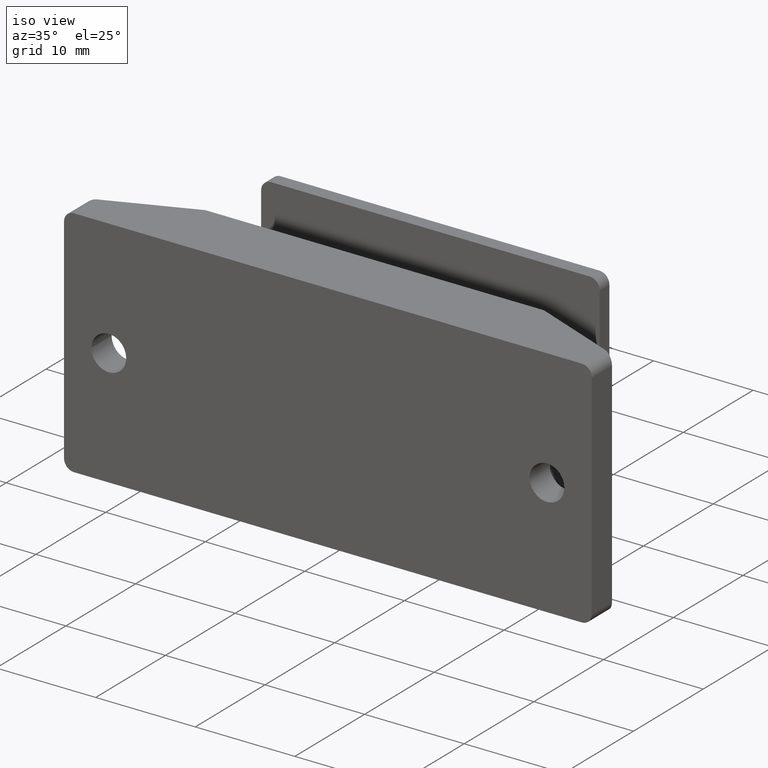
[diagram: clean part render]
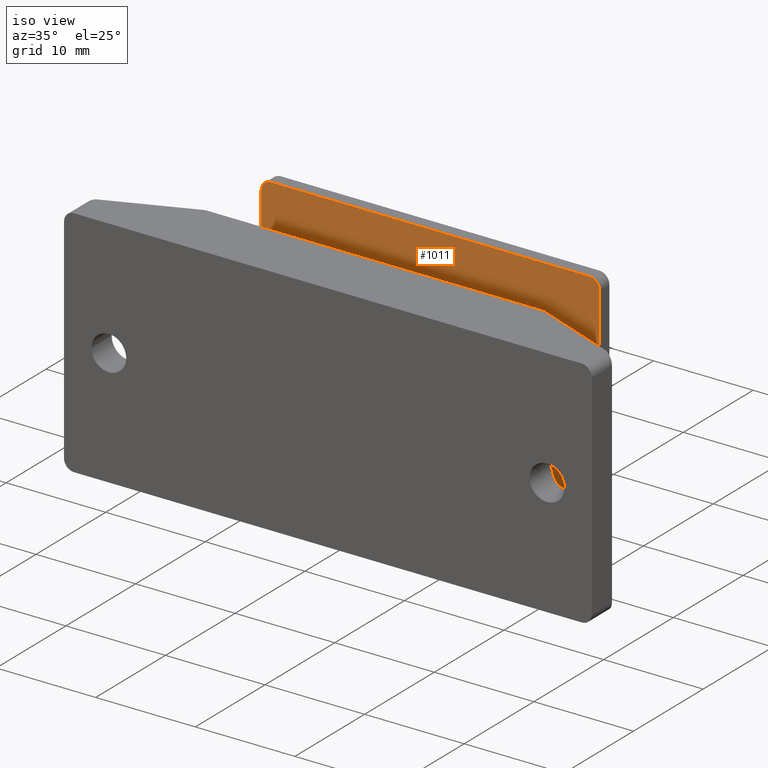
[diagram: same view with one face highlighted and labeled with its STEP entity id]
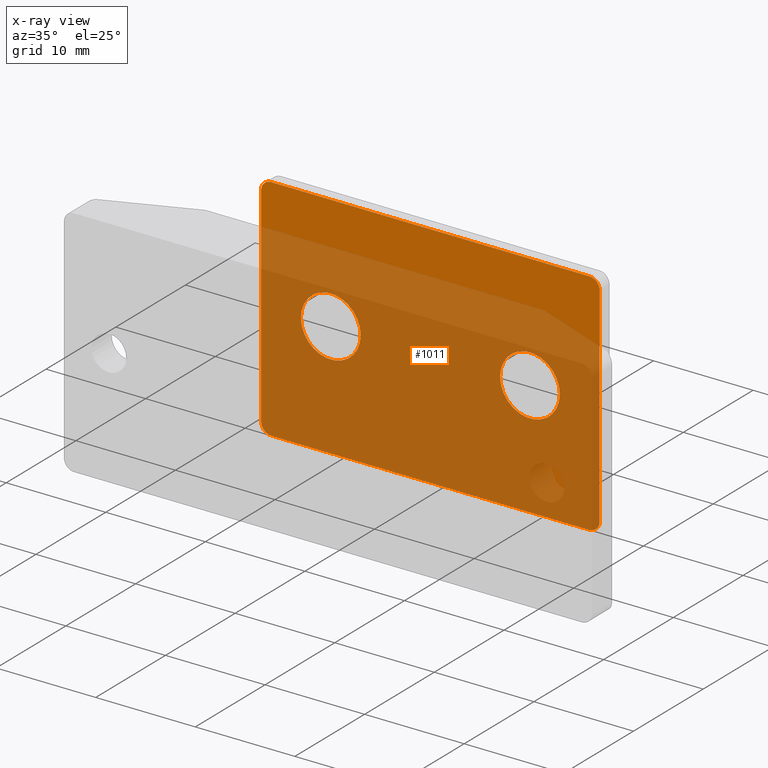
[diagram: x-ray of the same camera — body ghosted, the highlighted face saturated]
A machine part, iso view. The second image highlights one B-rep face of the part: STEP entity #1011.
The next image is the same camera in x-ray: the body ghosted, the highlighted face saturated — about 79% of this face is hidden behind the body in this view.
In plain terms, the highlighted planar face has unit normal (-0, -1, 0).
Its self-contained STEP definition (entity closure, byte-faithful):
#56=FACE_BOUND('',#218,.T.);
#57=FACE_BOUND('',#219,.T.);
#87=PLANE('',#1105);
#145=FACE_OUTER_BOUND('',#217,.T.);
#217=EDGE_LOOP('',(#894,#895,#896,#897,#898,#899,#900,#901));
#218=EDGE_LOOP('',(#902));
#219=EDGE_LOOP('',(#903));
#304=LINE('',#1593,#406);
#310=LINE('',#1618,#412);
#314=LINE('',#1641,#416);
#315=LINE('',#1643,#417);
#406=VECTOR('',#1297,32.);
#412=VECTOR('',#1321,32.);
#416=VECTOR('',#1351,21.);
#417=VECTOR('',#1354,21.);
#452=CIRCLE('',#1079,1.);
#459=CIRCLE('',#1089,1.);
#460=CIRCLE('',#1092,1.);
#461=CIRCLE('',#1094,1.);
#463=CIRCLE('',#1097,3.);
#465=CIRCLE('',#1101,3.);
#518=VERTEX_POINT('',#1580);
#519=VERTEX_POINT('',#1581);
#523=VERTEX_POINT('',#1591);
#531=VERTEX_POINT('',#1611);
#532=VERTEX_POINT('',#1612);
#533=VERTEX_POINT('',#1617);
#534=VERTEX_POINT('',#1621);
#535=VERTEX_POINT('',#1625);
#537=VERTEX_POINT('',#1631);
#539=VERTEX_POINT('',#1637);
#634=EDGE_CURVE('',#518,#519,#452,.T.);
#640=EDGE_CURVE('',#518,#523,#304,.T.);
#649=EDGE_CURVE('',#531,#532,#459,.T.);
#652=EDGE_CURVE('',#533,#532,#310,.T.);
#654=EDGE_CURVE('',#533,#534,#460,.T.);
#656=EDGE_CURVE('',#535,#523,#461,.T.);
#659=EDGE_CURVE('',#537,#537,#463,.T.);
#661=EDGE_CURVE('',#539,#539,#465,.T.);
#662=EDGE_CURVE('',#535,#534,#314,.T.);
#663=EDGE_CURVE('',#531,#519,#315,.T.);
#894=ORIENTED_EDGE('',*,*,#634,.F.);
#895=ORIENTED_EDGE('',*,*,#640,.T.);
#896=ORIENTED_EDGE('',*,*,#656,.F.);
#897=ORIENTED_EDGE('',*,*,#662,.T.);
#898=ORIENTED_EDGE('',*,*,#654,.F.);
#899=ORIENTED_EDGE('',*,*,#652,.T.);
#900=ORIENTED_EDGE('',*,*,#649,.F.);
#901=ORIENTED_EDGE('',*,*,#663,.T.);
#902=ORIENTED_EDGE('',*,*,#659,.T.);
#903=ORIENTED_EDGE('',*,*,#661,.T.);
#1011=ADVANCED_FACE('',(#145,#56,#57),#87,.T.);
#1079=AXIS2_PLACEMENT_3D('',#1582,#1287,#1288);
#1089=AXIS2_PLACEMENT_3D('',#1613,#1315,#1316);
#1092=AXIS2_PLACEMENT_3D('',#1622,#1325,#1326);
#1094=AXIS2_PLACEMENT_3D('',#1626,#1330,#1331);
#1097=AXIS2_PLACEMENT_3D('',#1632,#1337,#1338);
#1101=AXIS2_PLACEMENT_3D('',#1638,#1345,#1346);
#1105=AXIS2_PLACEMENT_3D('',#1644,#1355,#1356);
#1287=DIRECTION('center_axis',(0.,0.,-1.));
#1288=DIRECTION('ref_axis',(0.707106781186548,0.707106781186548,0.));
#1297=DIRECTION('',(-1.,0.,0.));
#1315=DIRECTION('center_axis',(0.,0.,-1.));
#1316=DIRECTION('ref_axis',(0.707106781186548,-0.707106781186548,0.));
#1321=DIRECTION('',(1.,0.,0.));
#1325=DIRECTION('center_axis',(0.,0.,-1.));
#1326=DIRECTION('ref_axis',(-0.707106781186548,-0.707106781186548,0.));
#1330=DIRECTION('center_axis',(0.,0.,-1.));
#1331=DIRECTION('ref_axis',(-0.707106781186548,0.707106781186548,0.));
#1337=DIRECTION('center_axis',(0.,0.,-1.));
#1338=DIRECTION('ref_axis',(1.,0.,0.));
#1345=DIRECTION('center_axis',(0.,0.,-1.));
#1346=DIRECTION('ref_axis',(1.,0.,0.));
#1351=DIRECTION('',(0.,-1.,0.));
#1354=DIRECTION('',(0.,1.,0.));
#1355=DIRECTION('center_axis',(0.,0.,1.));
#1356=DIRECTION('ref_axis',(1.,0.,0.));
#1580=CARTESIAN_POINT('',(16.,11.5,2.));
#1581=CARTESIAN_POINT('',(17.,10.5,2.));
#1582=CARTESIAN_POINT('Origin',(16.,10.5,2.));
#1591=CARTESIAN_POINT('',(-16.,11.5,2.));
#1593=CARTESIAN_POINT('',(-17.,11.5,2.));
#1611=CARTESIAN_POINT('',(17.,-10.5,2.));
#1612=CARTESIAN_POINT('',(16.,-11.5,2.));
#1613=CARTESIAN_POINT('Origin',(16.,-10.5,2.));
#1617=CARTESIAN_POINT('',(-16.,-11.5,2.));
#1618=CARTESIAN_POINT('',(17.,-11.5,2.));
#1621=CARTESIAN_POINT('',(-17.,-10.5,2.));
#1622=CARTESIAN_POINT('Origin',(-16.,-10.5,2.));
#1625=CARTESIAN_POINT('',(-17.,10.5,2.));
#1626=CARTESIAN_POINT('Origin',(-16.,10.5,2.));
#1631=CARTESIAN_POINT('',(7.,3.67394039744206E-16,2.));
#1632=CARTESIAN_POINT('Origin',(10.,0.,2.));
#1637=CARTESIAN_POINT('',(-13.,3.67394039744206E-16,2.));
#1638=CARTESIAN_POINT('Origin',(-10.,0.,2.));
#1641=CARTESIAN_POINT('',(-17.,-11.5,2.));
#1643=CARTESIAN_POINT('',(17.,11.5,2.));
#1644=CARTESIAN_POINT('Origin',(0.,0.,2.));